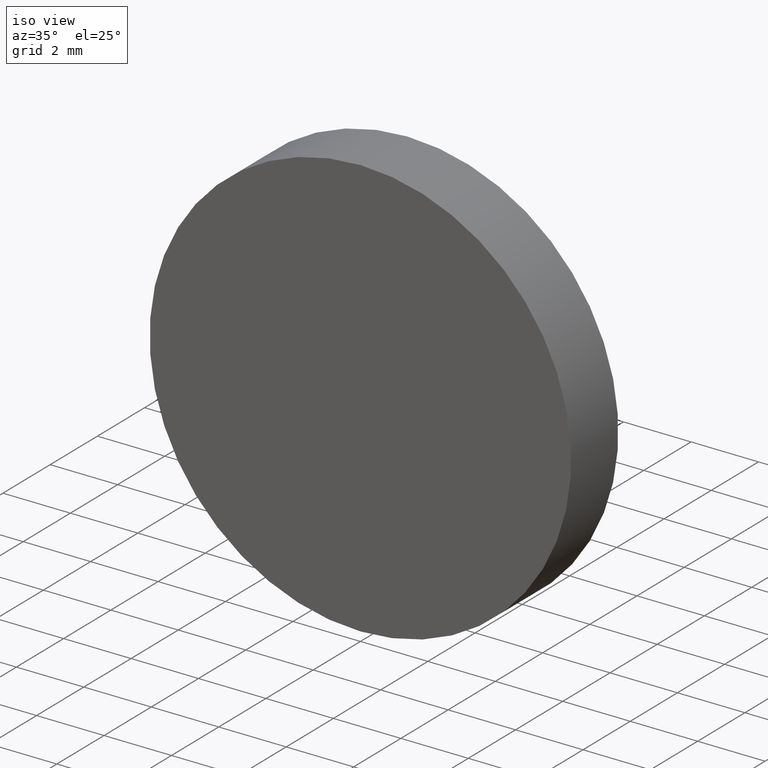
[diagram: clean part render]
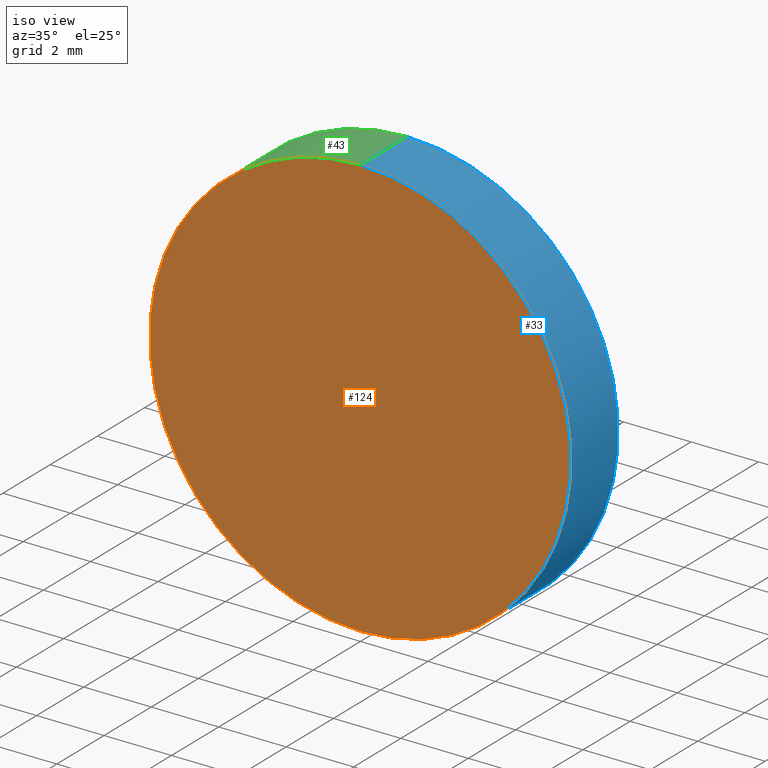
[diagram: same view with three faces highlighted in distinct colors, each labeled with its STEP entity id]
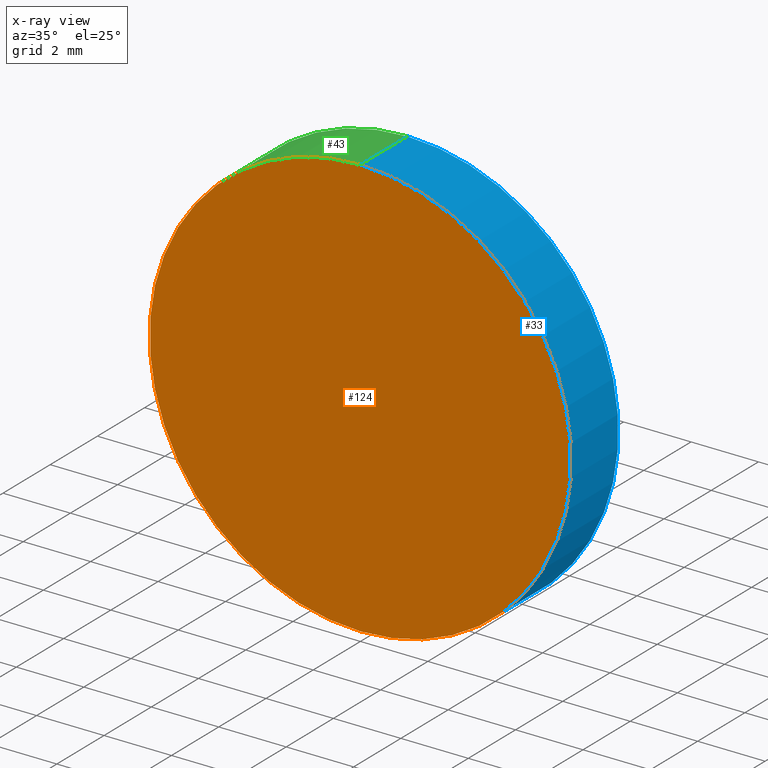
[diagram: x-ray of the same camera — body ghosted, the three highlighted faces saturated]
A machine part, iso view with three faces highlighted in distinct colors.
The next image is the same camera in x-ray (body ghosted, the three faces saturated) — at least one of them is partly hidden behind the body in this view.
Their STEP definitions:

[orange] entity #124 — the highlighted planar face has unit normal (0, 1, 0).
#36 = CARTESIAN_POINT ( 'NONE',  ( 0.0000000000000000000, 0.0000000000000000000, 0.0000000000000000000 ) ) ;
#37 = CARTESIAN_POINT ( 'NONE',  ( 0.0000000000000000000, 0.0000000000000000000, 0.0000000000000000000 ) ) ;
#38 = PLANE ( 'NONE',  #62 ) ;
#41 = EDGE_CURVE ( 'NONE', #61, #63, #110, .T. ) ;
#58 = DIRECTION ( 'NONE',  ( 0.0000000000000000000, 1.000000000000000000, 0.0000000000000000000 ) ) ;
#61 = VERTEX_POINT ( 'NONE', #84 ) ;
#62 = AXIS2_PLACEMENT_3D ( 'NONE', #37, #58, #82 ) ;
#63 = VERTEX_POINT ( 'NONE', #133 ) ;
#66 = CARTESIAN_POINT ( 'NONE',  ( 0.0000000000000000000, 0.0000000000000000000, 0.0000000000000000000 ) ) ;
#74 = ORIENTED_EDGE ( 'NONE', *, *, #41, .F. ) ;
#76 = EDGE_LOOP ( 'NONE', ( #137, #74 ) ) ;
#82 = DIRECTION ( 'NONE',  ( 0.0000000000000000000, -0.0000000000000000000, 1.000000000000000000 ) ) ;
#84 = CARTESIAN_POINT ( 'NONE',  ( 7.654042494670957600E-016, 0.0000000000000000000, 6.250000000000000000 ) ) ;
#93 = DIRECTION ( 'NONE',  ( 0.0000000000000000000, 1.000000000000000000, 0.0000000000000000000 ) ) ;
#104 = DIRECTION ( 'NONE',  ( 0.0000000000000000000, 0.0000000000000000000, 1.000000000000000000 ) ) ;
#110 = CIRCLE ( 'NONE', #111, 6.250000000000000000 ) ;
#111 = AXIS2_PLACEMENT_3D ( 'NONE', #36, #93, #104 ) ;
#112 = EDGE_CURVE ( 'NONE', #63, #61, #113, .T. ) ;
#113 = CIRCLE ( 'NONE', #118, 6.250000000000000000 ) ;
#118 = AXIS2_PLACEMENT_3D ( 'NONE', #66, #139, #128 ) ;
#122 = FACE_OUTER_BOUND ( 'NONE', #76, .T. ) ;
#124 = ADVANCED_FACE ( 'NONE', ( #122 ), #38, .F. ) ;
#128 = DIRECTION ( 'NONE',  ( 0.0000000000000000000, 0.0000000000000000000, 1.000000000000000000 ) ) ;
#133 = CARTESIAN_POINT ( 'NONE',  ( 0.0000000000000000000, 0.0000000000000000000, -6.250000000000000000 ) ) ;
#137 = ORIENTED_EDGE ( 'NONE', *, *, #112, .F. ) ;
#139 = DIRECTION ( 'NONE',  ( 0.0000000000000000000, 1.000000000000000000, 0.0000000000000000000 ) ) ;

[blue] entity #33 — the highlighted cylindrical surface (partial cylindrical patch) has radius 6.25 mm, axis along (-0, -1, -0).
#3 = ORIENTED_EDGE ( 'NONE', *, *, #89, .T. ) ;
#6 = AXIS2_PLACEMENT_3D ( 'NONE', #17, #24, #94 ) ;
#17 = CARTESIAN_POINT ( 'NONE',  ( 0.0000000000000000000, 2.000000000000000000, 0.0000000000000000000 ) ) ;
#19 = CARTESIAN_POINT ( 'NONE',  ( 0.0000000000000000000, 2.000000000000000000, -6.250000000000000000 ) ) ;
#21 = VECTOR ( 'NONE', #92, 1000.000000000000000 ) ;
#22 = EDGE_CURVE ( 'NONE', #136, #52, #42, .T. ) ;
#23 = EDGE_LOOP ( 'NONE', ( #30, #3, #108, #71 ) ) ;
#24 = DIRECTION ( 'NONE',  ( -0.0000000000000000000, -1.000000000000000000, -0.0000000000000000000 ) ) ;
#26 = DIRECTION ( 'NONE',  ( 0.0000000000000000000, 1.000000000000000000, 0.0000000000000000000 ) ) ;
#27 = CYLINDRICAL_SURFACE ( 'NONE', #6, 6.250000000000000000 ) ;
#30 = ORIENTED_EDGE ( 'NONE', *, *, #22, .F. ) ;
#32 = AXIS2_PLACEMENT_3D ( 'NONE', #117, #26, #115 ) ;
#33 = ADVANCED_FACE ( 'NONE', ( #88 ), #27, .T. ) ;
#36 = CARTESIAN_POINT ( 'NONE',  ( 0.0000000000000000000, 0.0000000000000000000, 0.0000000000000000000 ) ) ;
#41 = EDGE_CURVE ( 'NONE', #61, #63, #110, .T. ) ;
#42 = CIRCLE ( 'NONE', #32, 6.250000000000000000 ) ;
#47 = CARTESIAN_POINT ( 'NONE',  ( 7.654042494670957600E-016, 2.000000000000000000, 6.250000000000000000 ) ) ;
#52 = VERTEX_POINT ( 'NONE', #19 ) ;
#61 = VERTEX_POINT ( 'NONE', #84 ) ;
#63 = VERTEX_POINT ( 'NONE', #133 ) ;
#69 = CARTESIAN_POINT ( 'NONE',  ( 7.654042494670957600E-016, 2.000000000000000000, 6.250000000000000000 ) ) ;
#71 = ORIENTED_EDGE ( 'NONE', *, *, #105, .F. ) ;
#81 = LINE ( 'NONE', #106, #21 ) ;
#84 = CARTESIAN_POINT ( 'NONE',  ( 7.654042494670957600E-016, 0.0000000000000000000, 6.250000000000000000 ) ) ;
#85 = LINE ( 'NONE', #69, #97 ) ;
#88 = FACE_OUTER_BOUND ( 'NONE', #23, .T. ) ;
#89 = EDGE_CURVE ( 'NONE', #136, #61, #85, .T. ) ;
#92 = DIRECTION ( 'NONE',  ( -0.0000000000000000000, -1.000000000000000000, -0.0000000000000000000 ) ) ;
#93 = DIRECTION ( 'NONE',  ( 0.0000000000000000000, 1.000000000000000000, 0.0000000000000000000 ) ) ;
#94 = DIRECTION ( 'NONE',  ( 0.0000000000000000000, 0.0000000000000000000, -1.000000000000000000 ) ) ;
#97 = VECTOR ( 'NONE', #140, 1000.000000000000000 ) ;
#104 = DIRECTION ( 'NONE',  ( 0.0000000000000000000, 0.0000000000000000000, 1.000000000000000000 ) ) ;
#105 = EDGE_CURVE ( 'NONE', #52, #63, #81, .T. ) ;
#106 = CARTESIAN_POINT ( 'NONE',  ( 0.0000000000000000000, 2.000000000000000000, -6.250000000000000000 ) ) ;
#108 = ORIENTED_EDGE ( 'NONE', *, *, #41, .T. ) ;
#110 = CIRCLE ( 'NONE', #111, 6.250000000000000000 ) ;
#111 = AXIS2_PLACEMENT_3D ( 'NONE', #36, #93, #104 ) ;
#115 = DIRECTION ( 'NONE',  ( 0.0000000000000000000, 0.0000000000000000000, 1.000000000000000000 ) ) ;
#117 = CARTESIAN_POINT ( 'NONE',  ( 0.0000000000000000000, 2.000000000000000000, 0.0000000000000000000 ) ) ;
#133 = CARTESIAN_POINT ( 'NONE',  ( 0.0000000000000000000, 0.0000000000000000000, -6.250000000000000000 ) ) ;
#136 = VERTEX_POINT ( 'NONE', #47 ) ;
#140 = DIRECTION ( 'NONE',  ( -0.0000000000000000000, -1.000000000000000000, -0.0000000000000000000 ) ) ;

[green] entity #43 — the highlighted cylindrical surface (partial cylindrical patch) has radius 6.25 mm, axis along (-0, -1, -0).
#16 = ORIENTED_EDGE ( 'NONE', *, *, #89, .F. ) ;
#19 = CARTESIAN_POINT ( 'NONE',  ( 0.0000000000000000000, 2.000000000000000000, -6.250000000000000000 ) ) ;
#21 = VECTOR ( 'NONE', #92, 1000.000000000000000 ) ;
#34 = CIRCLE ( 'NONE', #78, 6.250000000000000000 ) ;
#43 = ADVANCED_FACE ( 'NONE', ( #48 ), #90, .T. ) ;
#47 = CARTESIAN_POINT ( 'NONE',  ( 7.654042494670957600E-016, 2.000000000000000000, 6.250000000000000000 ) ) ;
#48 = FACE_OUTER_BOUND ( 'NONE', #65, .T. ) ;
#50 = CARTESIAN_POINT ( 'NONE',  ( 0.0000000000000000000, 2.000000000000000000, 0.0000000000000000000 ) ) ;
#52 = VERTEX_POINT ( 'NONE', #19 ) ;
#53 = EDGE_CURVE ( 'NONE', #52, #136, #34, .T. ) ;
#54 = ORIENTED_EDGE ( 'NONE', *, *, #112, .T. ) ;
#55 = ORIENTED_EDGE ( 'NONE', *, *, #105, .T. ) ;
#61 = VERTEX_POINT ( 'NONE', #84 ) ;
#63 = VERTEX_POINT ( 'NONE', #133 ) ;
#65 = EDGE_LOOP ( 'NONE', ( #16, #102, #55, #54 ) ) ;
#66 = CARTESIAN_POINT ( 'NONE',  ( 0.0000000000000000000, 0.0000000000000000000, 0.0000000000000000000 ) ) ;
#69 = CARTESIAN_POINT ( 'NONE',  ( 7.654042494670957600E-016, 2.000000000000000000, 6.250000000000000000 ) ) ;
#78 = AXIS2_PLACEMENT_3D ( 'NONE', #50, #95, #130 ) ;
#80 = DIRECTION ( 'NONE',  ( 0.0000000000000000000, 0.0000000000000000000, -1.000000000000000000 ) ) ;
#81 = LINE ( 'NONE', #106, #21 ) ;
#84 = CARTESIAN_POINT ( 'NONE',  ( 7.654042494670957600E-016, 0.0000000000000000000, 6.250000000000000000 ) ) ;
#85 = LINE ( 'NONE', #69, #97 ) ;
#89 = EDGE_CURVE ( 'NONE', #136, #61, #85, .T. ) ;
#90 = CYLINDRICAL_SURFACE ( 'NONE', #123, 6.250000000000000000 ) ;
#92 = DIRECTION ( 'NONE',  ( -0.0000000000000000000, -1.000000000000000000, -0.0000000000000000000 ) ) ;
#95 = DIRECTION ( 'NONE',  ( 0.0000000000000000000, 1.000000000000000000, 0.0000000000000000000 ) ) ;
#97 = VECTOR ( 'NONE', #140, 1000.000000000000000 ) ;
#102 = ORIENTED_EDGE ( 'NONE', *, *, #53, .F. ) ;
#103 = CARTESIAN_POINT ( 'NONE',  ( 0.0000000000000000000, 2.000000000000000000, 0.0000000000000000000 ) ) ;
#105 = EDGE_CURVE ( 'NONE', #52, #63, #81, .T. ) ;
#106 = CARTESIAN_POINT ( 'NONE',  ( 0.0000000000000000000, 2.000000000000000000, -6.250000000000000000 ) ) ;
#112 = EDGE_CURVE ( 'NONE', #63, #61, #113, .T. ) ;
#113 = CIRCLE ( 'NONE', #118, 6.250000000000000000 ) ;
#118 = AXIS2_PLACEMENT_3D ( 'NONE', #66, #139, #128 ) ;
#123 = AXIS2_PLACEMENT_3D ( 'NONE', #103, #129, #80 ) ;
#128 = DIRECTION ( 'NONE',  ( 0.0000000000000000000, 0.0000000000000000000, 1.000000000000000000 ) ) ;
#129 = DIRECTION ( 'NONE',  ( -0.0000000000000000000, -1.000000000000000000, -0.0000000000000000000 ) ) ;
#130 = DIRECTION ( 'NONE',  ( 0.0000000000000000000, 0.0000000000000000000, 1.000000000000000000 ) ) ;
#133 = CARTESIAN_POINT ( 'NONE',  ( 0.0000000000000000000, 0.0000000000000000000, -6.250000000000000000 ) ) ;
#136 = VERTEX_POINT ( 'NONE', #47 ) ;
#139 = DIRECTION ( 'NONE',  ( 0.0000000000000000000, 1.000000000000000000, 0.0000000000000000000 ) ) ;
#140 = DIRECTION ( 'NONE',  ( -0.0000000000000000000, -1.000000000000000000, -0.0000000000000000000 ) ) ;